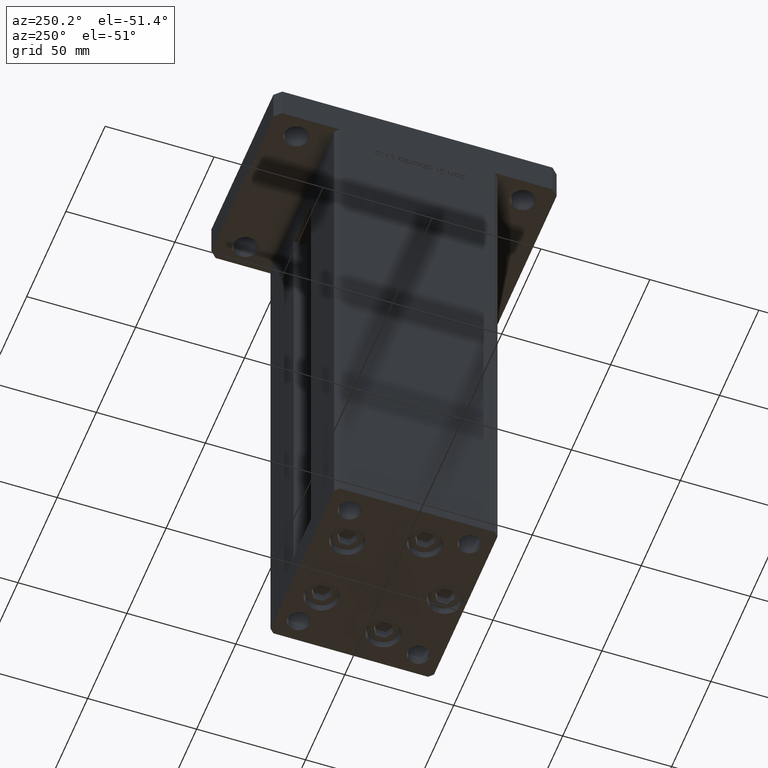
[diagram: clean part render]
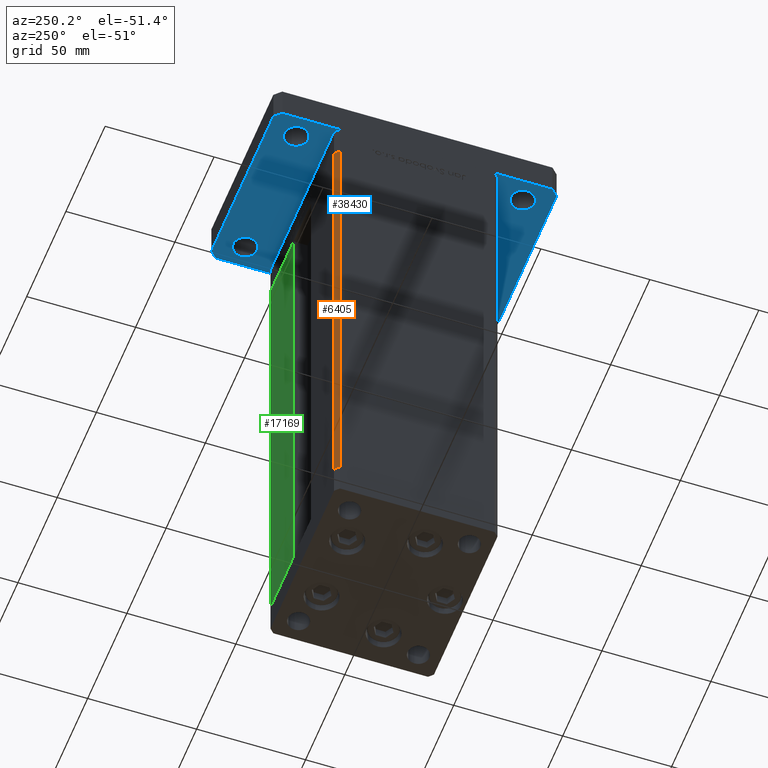
[diagram: same view with three faces highlighted in distinct colors, each labeled with its STEP entity id]
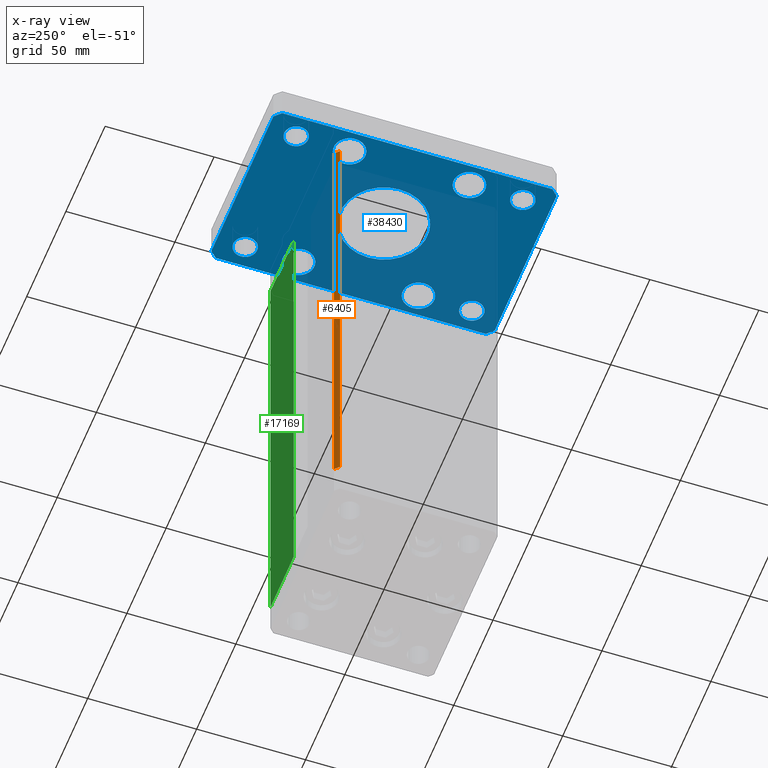
[diagram: x-ray of the same camera — body ghosted, the three highlighted faces saturated]
A machine part, auxiliary view with three faces highlighted in distinct colors.
The next image is the same camera in x-ray (body ghosted, the three faces saturated) — at least one of them is partly hidden behind the body in this view.
Their STEP definitions:

[orange] entity #6405 — the highlighted planar face has unit normal (0.7071, -0.7071, 0).
#2657 = ORIENTED_EDGE ( 'NONE', *, *, #41443, .T. ) ;
#3189 = DIRECTION ( 'NONE',  ( -0.000000000000000000, -0.000000000000000000, -1.000000000000000000 ) ) ;
#5509 = CARTESIAN_POINT ( 'NONE',  ( -40.50000000000000000, 37.50000000000000711, 0.000000000000000000 ) ) ;
#6176 = ORIENTED_EDGE ( 'NONE', *, *, #48785, .F. ) ;
#6405 = ADVANCED_FACE ( 'NONE', ( #37725 ), #28816, .F. ) ;
#7800 = VECTOR ( 'NONE', #9841, 1000.000000000000114 ) ;
#8801 = CARTESIAN_POINT ( 'NONE',  ( -40.50000000000000000, 37.50000000000000711, 0.000000000000000000 ) ) ;
#9456 = ORIENTED_EDGE ( 'NONE', *, *, #32399, .T. ) ;
#9495 = VERTEX_POINT ( 'NONE', #17796 ) ;
#9783 = DIRECTION ( 'NONE',  ( -0.000000000000000000, -0.000000000000000000, -1.000000000000000000 ) ) ;
#9841 = DIRECTION ( 'NONE',  ( -0.7071067811865500152, -0.7071067811865451302, 0.000000000000000000 ) ) ;
#13284 = LINE ( 'NONE', #21140, #30863 ) ;
#13613 = VERTEX_POINT ( 'NONE', #8801 ) ;
#15110 = VERTEX_POINT ( 'NONE', #33323 ) ;
#15840 = LINE ( 'NONE', #5509, #7800 ) ;
#15925 = CARTESIAN_POINT ( 'NONE',  ( -42.50000000000000711, 35.50000000000001421, 218.5000000000000000 ) ) ;
#17796 = CARTESIAN_POINT ( 'NONE',  ( -40.50000000000000000, 37.50000000000000711, 218.5000000000000000 ) ) ;
#17902 = LINE ( 'NONE', #38752, #34854 ) ;
#18451 = LINE ( 'NONE', #15925, #29368 ) ;
#21140 = CARTESIAN_POINT ( 'NONE',  ( -40.50000000000000000, 37.50000000000000711, 218.5000000000000000 ) ) ;
#26745 = AXIS2_PLACEMENT_3D ( 'NONE', #33406, #45317, #49920 ) ;
#28816 = PLANE ( 'NONE',  #26745 ) ;
#29368 = VECTOR ( 'NONE', #3189, 1000.000000000000000 ) ;
#30863 = VECTOR ( 'NONE', #37669, 1000.000000000000114 ) ;
#31064 = EDGE_CURVE ( 'NONE', #15110, #40122, #18451, .T. ) ;
#32399 = EDGE_CURVE ( 'NONE', #13613, #40122, #15840, .T. ) ;
#33323 = CARTESIAN_POINT ( 'NONE',  ( -42.50000000000000711, 35.50000000000001421, 218.5000000000000000 ) ) ;
#33406 = CARTESIAN_POINT ( 'NONE',  ( -40.50000000000000000, 37.50000000000000711, 218.5000000000000000 ) ) ;
#34854 = VECTOR ( 'NONE', #9783, 1000.000000000000000 ) ;
#37669 = DIRECTION ( 'NONE',  ( -0.7071067811865500152, -0.7071067811865451302, 0.000000000000000000 ) ) ;
#37725 = FACE_OUTER_BOUND ( 'NONE', #38432, .T. ) ;
#38432 = EDGE_LOOP ( 'NONE', ( #9456, #47472, #6176, #2657 ) ) ;
#38752 = CARTESIAN_POINT ( 'NONE',  ( -40.50000000000000000, 37.50000000000000711, 218.5000000000000000 ) ) ;
#40122 = VERTEX_POINT ( 'NONE', #52943 ) ;
#41443 = EDGE_CURVE ( 'NONE', #9495, #13613, #17902, .T. ) ;
#45317 = DIRECTION ( 'NONE',  ( 0.7071067811865450192, -0.7071067811865500152, 0.000000000000000000 ) ) ;
#47472 = ORIENTED_EDGE ( 'NONE', *, *, #31064, .F. ) ;
#48785 = EDGE_CURVE ( 'NONE', #9495, #15110, #13284, .T. ) ;
#49920 = DIRECTION ( 'NONE',  ( 0.7071067811865500152, 0.7071067811865450192, 0.000000000000000000 ) ) ;
#52943 = CARTESIAN_POINT ( 'NONE',  ( -42.50000000000000711, 35.50000000000001421, 0.000000000000000000 ) ) ;

[blue] entity #38430 — the highlighted planar face has unit normal (0, 0, 1).
#297 = CARTESIAN_POINT ( 'NONE',  ( -26.99999999999998579, -52.00000000000000711, 0.000000000000000000 ) ) ;
#373 = CARTESIAN_POINT ( 'NONE',  ( -32.50000000000000000, 52.00000000000000000, 0.000000000000000000 ) ) ;
#644 = CARTESIAN_POINT ( 'NONE',  ( -39.50000000000003553, 65.00000000000000000, 0.000000000000000000 ) ) ;
#1049 = EDGE_CURVE ( 'NONE', #11909, #10479, #36999, .T. ) ;
#1296 = ORIENTED_EDGE ( 'NONE', *, *, #13332, .T. ) ;
#1366 = ORIENTED_EDGE ( 'NONE', *, *, #22279, .T. ) ;
#1406 = ORIENTED_EDGE ( 'NONE', *, *, #29237, .T. ) ;
#1413 = CARTESIAN_POINT ( 'NONE',  ( 42.50000000000000000, -61.99999999999988631, 0.000000000000000000 ) ) ;
#1492 = FACE_OUTER_BOUND ( 'NONE', #14717, .T. ) ;
#1662 = CARTESIAN_POINT ( 'NONE',  ( -32.50000000000000711, 27.50000000000000000, 0.000000000000000000 ) ) ;
#1729 = CIRCLE ( 'NONE', #33770, 5.499999999999994671 ) ;
#1818 = EDGE_LOOP ( 'NONE', ( #28231, #38540 ) ) ;
#2191 = DIRECTION ( 'NONE',  ( 1.000000000000000000, 0.000000000000000000, 0.000000000000000000 ) ) ;
#2696 = CARTESIAN_POINT ( 'NONE',  ( 39.75000000000000000, 27.50000000000000000, 0.000000000000000000 ) ) ;
#3014 = DIRECTION ( 'NONE',  ( 0.000000000000000000, 0.000000000000000000, 1.000000000000000000 ) ) ;
#3131 = AXIS2_PLACEMENT_3D ( 'NONE', #29159, #42380, #49729 ) ;
#3132 = CIRCLE ( 'NONE', #25649, 7.249999999999999112 ) ;
#3230 = CARTESIAN_POINT ( 'NONE',  ( 27.00000000000001421, 51.99999999999999289, 0.000000000000000000 ) ) ;
#4190 = CARTESIAN_POINT ( 'NONE',  ( 32.49999999999997868, -52.00000000000000711, 0.000000000000000000 ) ) ;
#4642 = LINE ( 'NONE', #13292, #17847 ) ;
#4644 = CARTESIAN_POINT ( 'NONE',  ( 42.50000000000000000, 62.00000000000000711, 0.000000000000000000 ) ) ;
#4884 = AXIS2_PLACEMENT_3D ( 'NONE', #46656, #50210, #30159 ) ;
#4934 = ORIENTED_EDGE ( 'NONE', *, *, #20780, .F. ) ;
#5040 = FACE_BOUND ( 'NONE', #6946, .T. ) ;
#5145 = DIRECTION ( 'NONE',  ( -0.7071067811865466846, -0.7071067811865483499, 0.000000000000000000 ) ) ;
#5312 = FACE_BOUND ( 'NONE', #1818, .T. ) ;
#5314 = CARTESIAN_POINT ( 'NONE',  ( 32.50000000000000000, 27.50000000000000000, 0.000000000000000000 ) ) ;
#5795 = EDGE_CURVE ( 'NONE', #7604, #50354, #12940, .T. ) ;
#6018 = DIRECTION ( 'NONE',  ( 0.000000000000000000, 0.000000000000000000, 1.000000000000000000 ) ) ;
#6038 = ORIENTED_EDGE ( 'NONE', *, *, #52517, .T. ) ;
#6590 = CIRCLE ( 'NONE', #3131, 7.249999999999999112 ) ;
#6946 = EDGE_LOOP ( 'NONE', ( #12464, #1406 ) ) ;
#6959 = VERTEX_POINT ( 'NONE', #39523 ) ;
#7014 = VECTOR ( 'NONE', #16755, 1000.000000000000114 ) ;
#7055 = VERTEX_POINT ( 'NONE', #20819 ) ;
#7214 = ORIENTED_EDGE ( 'NONE', *, *, #12804, .T. ) ;
#7326 = EDGE_LOOP ( 'NONE', ( #30659, #49870 ) ) ;
#7604 = VERTEX_POINT ( 'NONE', #20595 ) ;
#7780 = DIRECTION ( 'NONE',  ( 0.000000000000000000, 0.000000000000000000, 1.000000000000000000 ) ) ;
#7855 = ORIENTED_EDGE ( 'NONE', *, *, #33268, .T. ) ;
#7897 = ORIENTED_EDGE ( 'NONE', *, *, #10446, .T. ) ;
#8007 = EDGE_CURVE ( 'NONE', #22846, #23334, #38564, .T. ) ;
#8251 = EDGE_CURVE ( 'NONE', #35524, #7055, #51059, .T. ) ;
#8298 = AXIS2_PLACEMENT_3D ( 'NONE', #13371, #25052, #29903 ) ;
#8373 = CARTESIAN_POINT ( 'NONE',  ( 37.99999999999999289, 51.99999999999999289, 0.000000000000000000 ) ) ;
#8481 = AXIS2_PLACEMENT_3D ( 'NONE', #49165, #16113, #44546 ) ;
#9640 = FACE_BOUND ( 'NONE', #26088, .T. ) ;
#10196 = EDGE_CURVE ( 'NONE', #34622, #52477, #13211, .T. ) ;
#10446 = EDGE_CURVE ( 'NONE', #52036, #17759, #49299, .T. ) ;
#10479 = VERTEX_POINT ( 'NONE', #27541 ) ;
#10769 = LINE ( 'NONE', #42990, #41188 ) ;
#10969 = VERTEX_POINT ( 'NONE', #2696 ) ;
#11162 = DIRECTION ( 'NONE',  ( 1.000000000000000000, 0.000000000000000000, 0.000000000000000000 ) ) ;
#11196 = CIRCLE ( 'NONE', #15523, 5.499999999999994671 ) ;
#11595 = VERTEX_POINT ( 'NONE', #32106 ) ;
#11909 = VERTEX_POINT ( 'NONE', #297 ) ;
#11981 = ORIENTED_EDGE ( 'NONE', *, *, #17201, .T. ) ;
#12464 = ORIENTED_EDGE ( 'NONE', *, *, #18272, .T. ) ;
#12553 = EDGE_CURVE ( 'NONE', #16727, #36756, #23022, .T. ) ;
#12804 = EDGE_CURVE ( 'NONE', #7055, #35524, #48111, .T. ) ;
#12854 = DIRECTION ( 'NONE',  ( 0.000000000000000000, 0.000000000000000000, 1.000000000000000000 ) ) ;
#12940 = CIRCLE ( 'NONE', #30237, 5.499999999999994671 ) ;
#13006 = CIRCLE ( 'NONE', #26852, 20.00000000000000000 ) ;
#13211 = LINE ( 'NONE', #25152, #7014 ) ;
#13292 = CARTESIAN_POINT ( 'NONE',  ( -39.50000000000000000, -65.00000000000000000, 0.000000000000000000 ) ) ;
#13332 = EDGE_CURVE ( 'NONE', #10969, #45215, #3132, .T. ) ;
#13371 = CARTESIAN_POINT ( 'NONE',  ( 32.50000000000000000, -27.50000000000000000, 0.000000000000000000 ) ) ;
#13422 = DIRECTION ( 'NONE',  ( 0.000000000000000000, 0.000000000000000000, 1.000000000000000000 ) ) ;
#13695 = CARTESIAN_POINT ( 'NONE',  ( 0.000000000000000000, 0.000000000000000000, 0.000000000000000000 ) ) ;
#13790 = DIRECTION ( 'NONE',  ( 1.000000000000000000, 0.000000000000000000, 0.000000000000000000 ) ) ;
#14180 = DIRECTION ( 'NONE',  ( 1.000000000000000000, 0.000000000000000000, 0.000000000000000000 ) ) ;
#14249 = CARTESIAN_POINT ( 'NONE',  ( -42.50000000000002132, 62.00000000000000711, 0.000000000000000000 ) ) ;
#14511 = CIRCLE ( 'NONE', #42171, 20.00000000000000000 ) ;
#14591 = EDGE_CURVE ( 'NONE', #52477, #34280, #41364, .T. ) ;
#14717 = EDGE_LOOP ( 'NONE', ( #39147, #15379, #21876, #15570, #36882, #43466, #39888, #45166 ) ) ;
#14892 = VECTOR ( 'NONE', #21951, 1000.000000000000000 ) ;
#15013 = EDGE_CURVE ( 'NONE', #24044, #47893, #35941, .T. ) ;
#15379 = ORIENTED_EDGE ( 'NONE', *, *, #17918, .F. ) ;
#15409 = EDGE_LOOP ( 'NONE', ( #6038, #1296 ) ) ;
#15523 = AXIS2_PLACEMENT_3D ( 'NONE', #35190, #43021, #13790 ) ;
#15570 = ORIENTED_EDGE ( 'NONE', *, *, #50802, .F. ) ;
#16113 = DIRECTION ( 'NONE',  ( 0.000000000000000000, 0.000000000000000000, 1.000000000000000000 ) ) ;
#16727 = VERTEX_POINT ( 'NONE', #27080 ) ;
#16755 = DIRECTION ( 'NONE',  ( 0.7071067811865459074, 0.7071067811865491270, 0.000000000000000000 ) ) ;
#16912 = AXIS2_PLACEMENT_3D ( 'NONE', #35534, #28185, #44692 ) ;
#17201 = EDGE_CURVE ( 'NONE', #36756, #16727, #6590, .T. ) ;
#17420 = DIRECTION ( 'NONE',  ( 0.000000000000000000, 0.000000000000000000, 1.000000000000000000 ) ) ;
#17759 = VERTEX_POINT ( 'NONE', #3230 ) ;
#17847 = VECTOR ( 'NONE', #29816, 1000.000000000000000 ) ;
#17918 = EDGE_CURVE ( 'NONE', #23334, #18553, #10769, .T. ) ;
#18204 = AXIS2_PLACEMENT_3D ( 'NONE', #1662, #6018, #2191 ) ;
#18272 = EDGE_CURVE ( 'NONE', #6959, #38755, #29987, .T. ) ;
#18302 = DIRECTION ( 'NONE',  ( 1.000000000000000000, 0.000000000000000000, -0.000000000000000000 ) ) ;
#18553 = VERTEX_POINT ( 'NONE', #22997 ) ;
#18673 = CARTESIAN_POINT ( 'NONE',  ( 39.50000000000001421, -64.99999999999988631, 0.000000000000000000 ) ) ;
#18713 = CIRCLE ( 'NONE', #23938, 7.249999999999999112 ) ;
#18914 = ORIENTED_EDGE ( 'NONE', *, *, #12553, .T. ) ;
#18932 = CARTESIAN_POINT ( 'NONE',  ( 39.50000000000002842, 65.00000000000002842, 0.000000000000000000 ) ) ;
#19060 = CARTESIAN_POINT ( 'NONE',  ( -42.49999999999999289, -62.00000000000001421, 0.000000000000000000 ) ) ;
#19409 = DIRECTION ( 'NONE',  ( 1.000000000000000000, 0.000000000000000000, 0.000000000000000000 ) ) ;
#19610 = AXIS2_PLACEMENT_3D ( 'NONE', #4190, #20706, #33965 ) ;
#19802 = CARTESIAN_POINT ( 'NONE',  ( -32.50000000000000000, 52.00000000000000000, 0.000000000000000000 ) ) ;
#19925 = AXIS2_PLACEMENT_3D ( 'NONE', #29621, #46120, #38259 ) ;
#20595 = CARTESIAN_POINT ( 'NONE',  ( -27.00000000000000711, 52.00000000000000000, 0.000000000000000000 ) ) ;
#20706 = DIRECTION ( 'NONE',  ( 0.000000000000000000, 0.000000000000000000, 1.000000000000000000 ) ) ;
#20780 = EDGE_CURVE ( 'NONE', #37271, #11595, #14511, .T. ) ;
#20809 = CIRCLE ( 'NONE', #33777, 5.499999999999998224 ) ;
#20819 = CARTESIAN_POINT ( 'NONE',  ( -25.25000000000000711, 27.50000000000000000, 0.000000000000000000 ) ) ;
#21105 = EDGE_LOOP ( 'NONE', ( #4934, #35909 ) ) ;
#21554 = FACE_BOUND ( 'NONE', #25747, .T. ) ;
#21876 = ORIENTED_EDGE ( 'NONE', *, *, #8007, .F. ) ;
#21951 = DIRECTION ( 'NONE',  ( -0.7071067811865417996, 0.7071067811865532349, 0.000000000000000000 ) ) ;
#22083 = DIRECTION ( 'NONE',  ( 1.000000000000000000, 0.000000000000000000, 0.000000000000000000 ) ) ;
#22279 = EDGE_CURVE ( 'NONE', #17759, #52036, #24072, .T. ) ;
#22359 = FACE_BOUND ( 'NONE', #21105, .T. ) ;
#22361 = DIRECTION ( 'NONE',  ( 0.000000000000000000, 0.000000000000000000, 1.000000000000000000 ) ) ;
#22655 = AXIS2_PLACEMENT_3D ( 'NONE', #13695, #13422, #18302 ) ;
#22846 = VERTEX_POINT ( 'NONE', #14249 ) ;
#22997 = CARTESIAN_POINT ( 'NONE',  ( -39.50000000000000000, -65.00000000000000000, 0.000000000000000000 ) ) ;
#23022 = CIRCLE ( 'NONE', #8298, 7.249999999999999112 ) ;
#23334 = VERTEX_POINT ( 'NONE', #19060 ) ;
#23938 = AXIS2_PLACEMENT_3D ( 'NONE', #42317, #17420, #30151 ) ;
#24044 = VERTEX_POINT ( 'NONE', #51036 ) ;
#24072 = CIRCLE ( 'NONE', #47411, 5.499999999999991118 ) ;
#24250 = DIRECTION ( 'NONE',  ( -1.000000000000000000, 0.000000000000000000, 0.000000000000000000 ) ) ;
#24945 = DIRECTION ( 'NONE',  ( 0.000000000000000000, 0.000000000000000000, 1.000000000000000000 ) ) ;
#25052 = DIRECTION ( 'NONE',  ( 0.000000000000000000, 0.000000000000000000, 1.000000000000000000 ) ) ;
#25152 = CARTESIAN_POINT ( 'NONE',  ( 39.50000000000001421, -64.99999999999988631, 0.000000000000000000 ) ) ;
#25649 = AXIS2_PLACEMENT_3D ( 'NONE', #5314, #22361, #22083 ) ;
#25747 = EDGE_LOOP ( 'NONE', ( #11981, #18914 ) ) ;
#25750 = LINE ( 'NONE', #4644, #14892 ) ;
#26088 = EDGE_LOOP ( 'NONE', ( #30421, #7214 ) ) ;
#26263 = EDGE_CURVE ( 'NONE', #10479, #11909, #11196, .T. ) ;
#26696 = FACE_BOUND ( 'NONE', #38175, .T. ) ;
#26735 = CARTESIAN_POINT ( 'NONE',  ( 39.50000000000002842, 65.00000000000002842, 0.000000000000000000 ) ) ;
#26852 = AXIS2_PLACEMENT_3D ( 'NONE', #28040, #46077, #24250 ) ;
#27080 = CARTESIAN_POINT ( 'NONE',  ( 39.75000000000000000, -27.50000000000000000, 0.000000000000000000 ) ) ;
#27506 = EDGE_CURVE ( 'NONE', #45936, #33317, #38974, .T. ) ;
#27541 = CARTESIAN_POINT ( 'NONE',  ( -37.99999999999997868, -52.00000000000000711, 0.000000000000000000 ) ) ;
#27602 = DIRECTION ( 'NONE',  ( -1.000000000000000000, -3.513364001978340512E-16, 0.000000000000000000 ) ) ;
#27631 = CARTESIAN_POINT ( 'NONE',  ( 0.000000000000000000, 0.000000000000000000, 0.000000000000000000 ) ) ;
#27668 = VECTOR ( 'NONE', #27602, 1000.000000000000000 ) ;
#28040 = CARTESIAN_POINT ( 'NONE',  ( 0.000000000000000000, 0.000000000000000000, 0.000000000000000000 ) ) ;
#28185 = DIRECTION ( 'NONE',  ( 0.000000000000000000, 0.000000000000000000, 1.000000000000000000 ) ) ;
#28231 = ORIENTED_EDGE ( 'NONE', *, *, #26263, .T. ) ;
#28575 = ORIENTED_EDGE ( 'NONE', *, *, #5795, .T. ) ;
#28610 = CIRCLE ( 'NONE', #19925, 7.249999999999999112 ) ;
#29141 = EDGE_CURVE ( 'NONE', #47893, #24044, #28610, .T. ) ;
#29159 = CARTESIAN_POINT ( 'NONE',  ( 32.50000000000000000, -27.50000000000000000, 0.000000000000000000 ) ) ;
#29237 = EDGE_CURVE ( 'NONE', #38755, #6959, #20809, .T. ) ;
#29284 = DIRECTION ( 'NONE',  ( 1.000000000000000000, 0.000000000000000000, 0.000000000000000000 ) ) ;
#29392 = DIRECTION ( 'NONE',  ( 1.000000000000000000, 0.000000000000000000, 0.000000000000000000 ) ) ;
#29621 = CARTESIAN_POINT ( 'NONE',  ( -32.50000000000000000, -27.50000000000000000, 0.000000000000000000 ) ) ;
#29769 = EDGE_CURVE ( 'NONE', #11595, #37271, #13006, .T. ) ;
#29816 = DIRECTION ( 'NONE',  ( 1.000000000000000000, 1.405345600791337191E-15, 0.000000000000000000 ) ) ;
#29903 = DIRECTION ( 'NONE',  ( 1.000000000000000000, 0.000000000000000000, 0.000000000000000000 ) ) ;
#29987 = CIRCLE ( 'NONE', #19610, 5.499999999999998224 ) ;
#30151 = DIRECTION ( 'NONE',  ( 1.000000000000000000, 0.000000000000000000, 0.000000000000000000 ) ) ;
#30159 = DIRECTION ( 'NONE',  ( 1.000000000000000000, 0.000000000000000000, 0.000000000000000000 ) ) ;
#30237 = AXIS2_PLACEMENT_3D ( 'NONE', #19802, #24945, #29284 ) ;
#30421 = ORIENTED_EDGE ( 'NONE', *, *, #8251, .T. ) ;
#30446 = DIRECTION ( 'NONE',  ( 0.000000000000000000, 0.000000000000000000, 1.000000000000000000 ) ) ;
#30659 = ORIENTED_EDGE ( 'NONE', *, *, #29141, .T. ) ;
#31643 = CARTESIAN_POINT ( 'NONE',  ( 25.25000000000000000, -27.50000000000000000, 0.000000000000000000 ) ) ;
#32106 = CARTESIAN_POINT ( 'NONE',  ( 20.00000000000000000, 2.449293598294706513E-15, 0.000000000000000000 ) ) ;
#32765 = DIRECTION ( 'NONE',  ( -1.000000000000000000, 0.000000000000000000, 0.000000000000000000 ) ) ;
#33258 = CARTESIAN_POINT ( 'NONE',  ( 42.50000000000000000, -61.99999999999988631, 0.000000000000000000 ) ) ;
#33268 = EDGE_CURVE ( 'NONE', #50354, #7604, #1729, .T. ) ;
#33317 = VERTEX_POINT ( 'NONE', #644 ) ;
#33770 = AXIS2_PLACEMENT_3D ( 'NONE', #373, #12854, #29392 ) ;
#33777 = AXIS2_PLACEMENT_3D ( 'NONE', #40118, #3014, #11162 ) ;
#33965 = DIRECTION ( 'NONE',  ( 1.000000000000000000, 0.000000000000000000, 0.000000000000000000 ) ) ;
#34024 = FACE_BOUND ( 'NONE', #15409, .T. ) ;
#34280 = VERTEX_POINT ( 'NONE', #49112 ) ;
#34563 = PLANE ( 'NONE',  #22655 ) ;
#34622 = VERTEX_POINT ( 'NONE', #18673 ) ;
#34799 = DIRECTION ( 'NONE',  ( 2.238352872228137677E-16, -1.000000000000000000, 0.000000000000000000 ) ) ;
#35190 = CARTESIAN_POINT ( 'NONE',  ( -32.49999999999997868, -52.00000000000000711, 0.000000000000000000 ) ) ;
#35524 = VERTEX_POINT ( 'NONE', #50927 ) ;
#35534 = CARTESIAN_POINT ( 'NONE',  ( -32.50000000000000000, -27.50000000000000000, 0.000000000000000000 ) ) ;
#35909 = ORIENTED_EDGE ( 'NONE', *, *, #29769, .F. ) ;
#35941 = CIRCLE ( 'NONE', #16912, 7.249999999999999112 ) ;
#36756 = VERTEX_POINT ( 'NONE', #31643 ) ;
#36882 = ORIENTED_EDGE ( 'NONE', *, *, #27506, .F. ) ;
#36999 = CIRCLE ( 'NONE', #8481, 5.499999999999994671 ) ;
#37115 = EDGE_LOOP ( 'NONE', ( #7855, #28575 ) ) ;
#37271 = VERTEX_POINT ( 'NONE', #42243 ) ;
#38165 = EDGE_CURVE ( 'NONE', #34280, #45936, #25750, .T. ) ;
#38175 = EDGE_LOOP ( 'NONE', ( #1366, #7897 ) ) ;
#38189 = CARTESIAN_POINT ( 'NONE',  ( -39.75000000000000000, -27.50000000000000000, 0.000000000000000000 ) ) ;
#38259 = DIRECTION ( 'NONE',  ( 1.000000000000000000, 0.000000000000000000, 0.000000000000000000 ) ) ;
#38430 = ADVANCED_FACE ( 'NONE', ( #22359, #1492, #5312, #26696, #51338, #51076, #21554, #34024, #9640, #5040 ), #34563, .F. ) ;
#38540 = ORIENTED_EDGE ( 'NONE', *, *, #1049, .T. ) ;
#38564 = LINE ( 'NONE', #51853, #40695 ) ;
#38703 = LINE ( 'NONE', #47375, #48953 ) ;
#38755 = VERTEX_POINT ( 'NONE', #42064 ) ;
#38974 = LINE ( 'NONE', #18932, #27668 ) ;
#39147 = ORIENTED_EDGE ( 'NONE', *, *, #52782, .F. ) ;
#39523 = CARTESIAN_POINT ( 'NONE',  ( 26.99999999999998579, -52.00000000000000711, 0.000000000000000000 ) ) ;
#39888 = ORIENTED_EDGE ( 'NONE', *, *, #14591, .F. ) ;
#40118 = CARTESIAN_POINT ( 'NONE',  ( 32.49999999999997868, -52.00000000000000711, 0.000000000000000000 ) ) ;
#40557 = DIRECTION ( 'NONE',  ( 0.000000000000000000, 1.000000000000000000, 0.000000000000000000 ) ) ;
#40695 = VECTOR ( 'NONE', #34799, 1000.000000000000000 ) ;
#41188 = VECTOR ( 'NONE', #48143, 1000.000000000000000 ) ;
#41364 = LINE ( 'NONE', #33258, #43692 ) ;
#41838 = CARTESIAN_POINT ( 'NONE',  ( 25.25000000000000000, 27.50000000000000000, 0.000000000000000000 ) ) ;
#42064 = CARTESIAN_POINT ( 'NONE',  ( 37.99999999999997868, -52.00000000000000711, 0.000000000000000000 ) ) ;
#42171 = AXIS2_PLACEMENT_3D ( 'NONE', #27631, #44145, #32765 ) ;
#42243 = CARTESIAN_POINT ( 'NONE',  ( -20.00000000000000000, 0.000000000000000000, 0.000000000000000000 ) ) ;
#42317 = CARTESIAN_POINT ( 'NONE',  ( 32.50000000000000000, 27.50000000000000000, 0.000000000000000000 ) ) ;
#42347 = AXIS2_PLACEMENT_3D ( 'NONE', #43783, #7780, #19409 ) ;
#42380 = DIRECTION ( 'NONE',  ( 0.000000000000000000, 0.000000000000000000, 1.000000000000000000 ) ) ;
#42655 = CARTESIAN_POINT ( 'NONE',  ( -38.00000000000000000, 52.00000000000000000, 0.000000000000000000 ) ) ;
#42990 = CARTESIAN_POINT ( 'NONE',  ( -42.49999999999999289, -62.00000000000001421, 0.000000000000000000 ) ) ;
#43021 = DIRECTION ( 'NONE',  ( 0.000000000000000000, 0.000000000000000000, 1.000000000000000000 ) ) ;
#43466 = ORIENTED_EDGE ( 'NONE', *, *, #38165, .F. ) ;
#43692 = VECTOR ( 'NONE', #40557, 1000.000000000000000 ) ;
#43783 = CARTESIAN_POINT ( 'NONE',  ( 32.50000000000000000, 51.99999999999999289, 0.000000000000000000 ) ) ;
#44145 = DIRECTION ( 'NONE',  ( 0.000000000000000000, 0.000000000000000000, -1.000000000000000000 ) ) ;
#44546 = DIRECTION ( 'NONE',  ( 1.000000000000000000, 0.000000000000000000, 0.000000000000000000 ) ) ;
#44692 = DIRECTION ( 'NONE',  ( 1.000000000000000000, 0.000000000000000000, 0.000000000000000000 ) ) ;
#45166 = ORIENTED_EDGE ( 'NONE', *, *, #10196, .F. ) ;
#45215 = VERTEX_POINT ( 'NONE', #41838 ) ;
#45936 = VERTEX_POINT ( 'NONE', #26735 ) ;
#46077 = DIRECTION ( 'NONE',  ( 0.000000000000000000, 0.000000000000000000, -1.000000000000000000 ) ) ;
#46120 = DIRECTION ( 'NONE',  ( 0.000000000000000000, 0.000000000000000000, 1.000000000000000000 ) ) ;
#46656 = CARTESIAN_POINT ( 'NONE',  ( -32.50000000000000711, 27.50000000000000000, 0.000000000000000000 ) ) ;
#46676 = CARTESIAN_POINT ( 'NONE',  ( 32.50000000000000000, 51.99999999999999289, 0.000000000000000000 ) ) ;
#47375 = CARTESIAN_POINT ( 'NONE',  ( -39.50000000000003553, 65.00000000000000000, 0.000000000000000000 ) ) ;
#47411 = AXIS2_PLACEMENT_3D ( 'NONE', #46676, #30446, #14180 ) ;
#47893 = VERTEX_POINT ( 'NONE', #38189 ) ;
#48111 = CIRCLE ( 'NONE', #4884, 7.249999999999999112 ) ;
#48143 = DIRECTION ( 'NONE',  ( 0.7071067811865483499, -0.7071067811865466846, 0.000000000000000000 ) ) ;
#48953 = VECTOR ( 'NONE', #5145, 1000.000000000000000 ) ;
#49112 = CARTESIAN_POINT ( 'NONE',  ( 42.50000000000000000, 62.00000000000000711, 0.000000000000000000 ) ) ;
#49165 = CARTESIAN_POINT ( 'NONE',  ( -32.49999999999997868, -52.00000000000000711, 0.000000000000000000 ) ) ;
#49299 = CIRCLE ( 'NONE', #42347, 5.499999999999991118 ) ;
#49729 = DIRECTION ( 'NONE',  ( 1.000000000000000000, 0.000000000000000000, 0.000000000000000000 ) ) ;
#49870 = ORIENTED_EDGE ( 'NONE', *, *, #15013, .T. ) ;
#50210 = DIRECTION ( 'NONE',  ( 0.000000000000000000, 0.000000000000000000, 1.000000000000000000 ) ) ;
#50354 = VERTEX_POINT ( 'NONE', #42655 ) ;
#50802 = EDGE_CURVE ( 'NONE', #33317, #22846, #38703, .T. ) ;
#50927 = CARTESIAN_POINT ( 'NONE',  ( -39.75000000000000711, 27.50000000000000000, 0.000000000000000000 ) ) ;
#51036 = CARTESIAN_POINT ( 'NONE',  ( -25.25000000000000000, -27.50000000000000000, 0.000000000000000000 ) ) ;
#51059 = CIRCLE ( 'NONE', #18204, 7.249999999999999112 ) ;
#51076 = FACE_BOUND ( 'NONE', #7326, .T. ) ;
#51338 = FACE_BOUND ( 'NONE', #37115, .T. ) ;
#51853 = CARTESIAN_POINT ( 'NONE',  ( -42.50000000000002132, 62.00000000000000711, 0.000000000000000000 ) ) ;
#52036 = VERTEX_POINT ( 'NONE', #8373 ) ;
#52477 = VERTEX_POINT ( 'NONE', #1413 ) ;
#52517 = EDGE_CURVE ( 'NONE', #45215, #10969, #18713, .T. ) ;
#52782 = EDGE_CURVE ( 'NONE', #18553, #34622, #4642, .T. ) ;

[green] entity #17169 — the highlighted planar face has unit normal (-0, -1, 0).
#1104 = VERTEX_POINT ( 'NONE', #44816 ) ;
#2311 = VERTEX_POINT ( 'NONE', #7099 ) ;
#2841 = CARTESIAN_POINT ( 'NONE',  ( -11.25000000000000000, 37.50000000000000000, 0.000000000000000000 ) ) ;
#3033 = EDGE_CURVE ( 'NONE', #2311, #44044, #32015, .T. ) ;
#3653 = DIRECTION ( 'NONE',  ( 1.000000000000000000, 0.000000000000000000, 0.000000000000000000 ) ) ;
#4071 = VECTOR ( 'NONE', #19370, 1000.000000000000000 ) ;
#4478 = ORIENTED_EDGE ( 'NONE', *, *, #29795, .T. ) ;
#7099 = CARTESIAN_POINT ( 'NONE',  ( 40.50000000000000000, 37.50000000000000711, 218.5000000000000000 ) ) ;
#7734 = CARTESIAN_POINT ( 'NONE',  ( -11.25000000000000000, 37.50000000000000000, 218.5000000000000000 ) ) ;
#8795 = LINE ( 'NONE', #48879, #31754 ) ;
#9356 = PLANE ( 'NONE',  #42020 ) ;
#13518 = ORIENTED_EDGE ( 'NONE', *, *, #3033, .T. ) ;
#16694 = CARTESIAN_POINT ( 'NONE',  ( -11.25000000000000000, 37.50000000000000000, 218.5000000000000000 ) ) ;
#17169 = ADVANCED_FACE ( 'NONE', ( #45658 ), #9356, .F. ) ;
#19370 = DIRECTION ( 'NONE',  ( -1.000000000000000000, 2.372271420139223331E-16, 0.000000000000000000 ) ) ;
#21173 = CARTESIAN_POINT ( 'NONE',  ( 11.24999999999999289, 37.50000000000000000, 218.5000000000000000 ) ) ;
#24333 = CARTESIAN_POINT ( 'NONE',  ( 40.50000000000000000, 37.50000000000000711, 0.000000000000000000 ) ) ;
#26872 = CARTESIAN_POINT ( 'NONE',  ( 40.50000000000000000, 37.50000000000000711, 218.5000000000000000 ) ) ;
#27228 = LINE ( 'NONE', #2841, #4071 ) ;
#28893 = DIRECTION ( 'NONE',  ( -2.372271420139223824E-16, -1.000000000000000000, 0.000000000000000000 ) ) ;
#29108 = DIRECTION ( 'NONE',  ( -0.000000000000000000, -0.000000000000000000, 1.000000000000000000 ) ) ;
#29795 = EDGE_CURVE ( 'NONE', #30899, #2311, #49164, .T. ) ;
#30899 = VERTEX_POINT ( 'NONE', #21173 ) ;
#31754 = VECTOR ( 'NONE', #29108, 1000.000000000000000 ) ;
#32015 = LINE ( 'NONE', #26872, #32754 ) ;
#32754 = VECTOR ( 'NONE', #48527, 1000.000000000000000 ) ;
#33751 = DIRECTION ( 'NONE',  ( 1.000000000000000000, -2.372271420139223824E-16, 0.000000000000000000 ) ) ;
#35088 = EDGE_LOOP ( 'NONE', ( #53272, #49889, #4478, #13518 ) ) ;
#42020 = AXIS2_PLACEMENT_3D ( 'NONE', #16694, #28893, #33751 ) ;
#44044 = VERTEX_POINT ( 'NONE', #24333 ) ;
#44816 = CARTESIAN_POINT ( 'NONE',  ( 11.25000000000000000, 37.50000000000000000, 0.000000000000000000 ) ) ;
#45658 = FACE_OUTER_BOUND ( 'NONE', #35088, .T. ) ;
#48527 = DIRECTION ( 'NONE',  ( -0.000000000000000000, -0.000000000000000000, -1.000000000000000000 ) ) ;
#48879 = CARTESIAN_POINT ( 'NONE',  ( 11.25000000000000000, 37.50000000000000000, 0.000000000000000000 ) ) ;
#49164 = LINE ( 'NONE', #7734, #52844 ) ;
#49889 = ORIENTED_EDGE ( 'NONE', *, *, #53245, .T. ) ;
#50413 = EDGE_CURVE ( 'NONE', #44044, #1104, #27228, .T. ) ;
#52844 = VECTOR ( 'NONE', #3653, 1000.000000000000000 ) ;
#53245 = EDGE_CURVE ( 'NONE', #1104, #30899, #8795, .T. ) ;
#53272 = ORIENTED_EDGE ( 'NONE', *, *, #50413, .T. ) ;